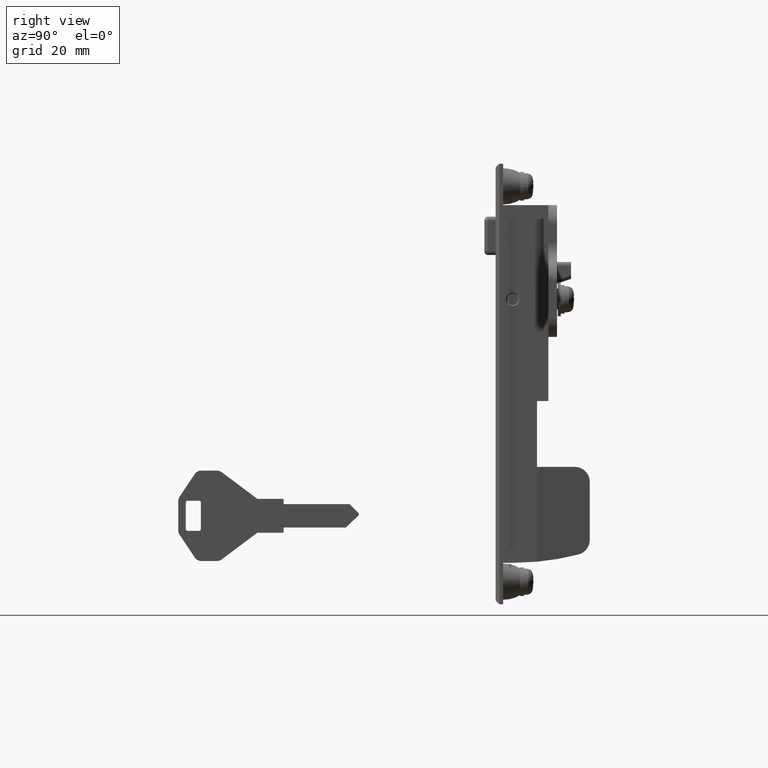
[diagram: clean part render]
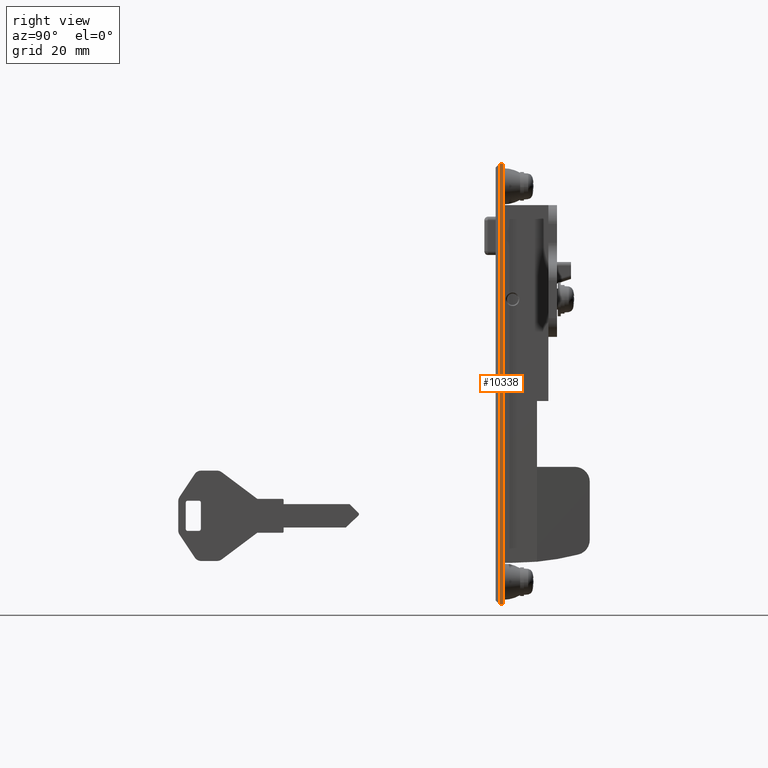
[diagram: same view with one face highlighted and labeled with its STEP entity id]
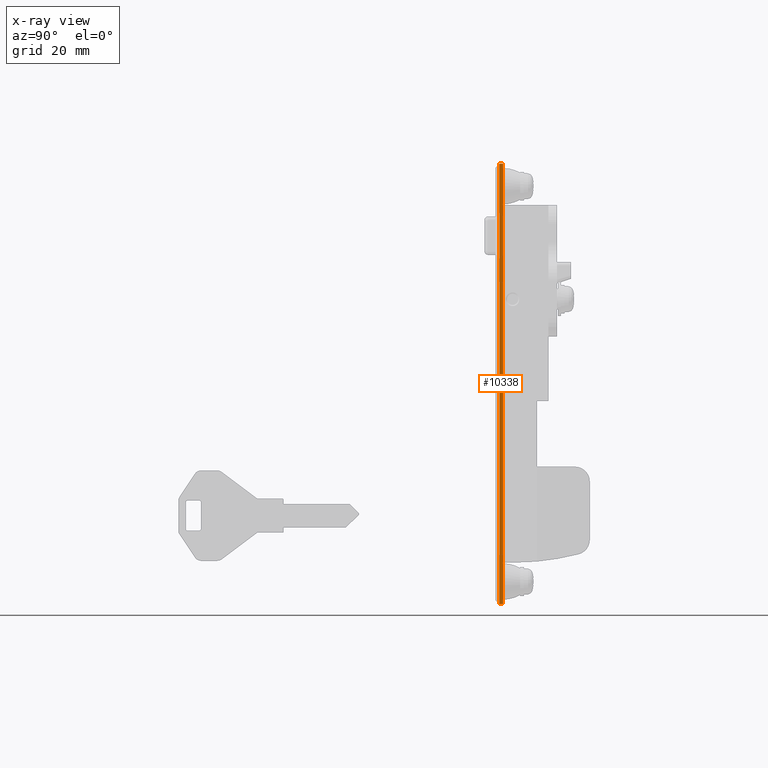
[diagram: x-ray of the same camera — body ghosted, the highlighted face saturated]
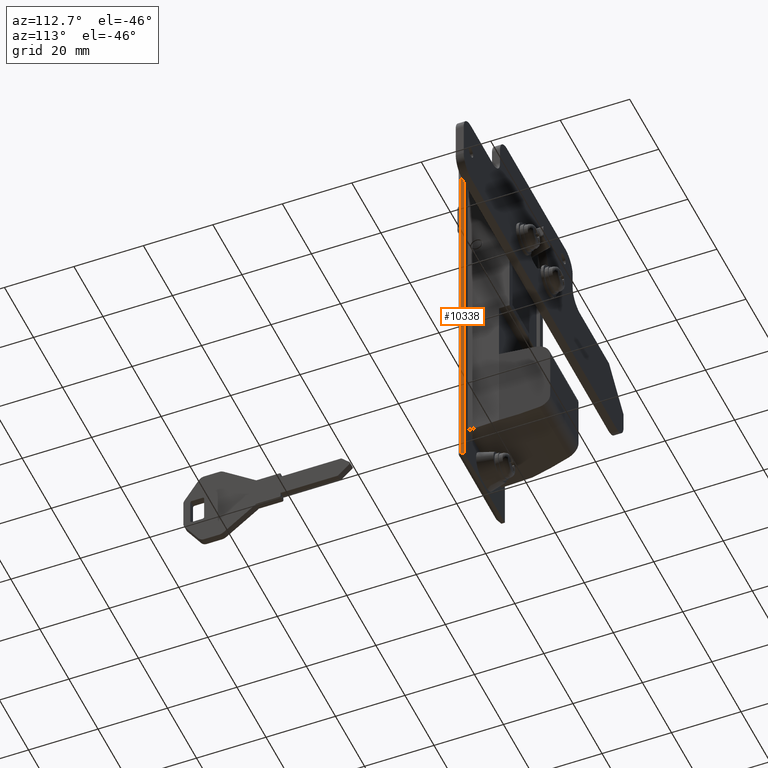
[diagram: same view with one face highlighted and labeled with its STEP entity id]
A machine part, right view. The second image highlights one B-rep face of the part: STEP entity #10338.
The next image is the same camera in x-ray: the body ghosted, the highlighted face saturated — about 0% of this face is hidden behind the body in this view.
A second angle (auxiliary view) of the same face is appended — the face is thin or edge-on in the first view.
In plain terms, the highlighted face is a freeform B-spline surface patch.
Its self-contained STEP definition (entity closure, byte-faithful):
#9916=CARTESIAN_POINT('',(-13.000000000000121,-14.0,-80.999799999999993));
#9917=VERTEX_POINT('',#9916);
#9923=CARTESIAN_POINT('',(-13.0,-14.0,36.0));
#9924=VERTEX_POINT('',#9923);
#9925=CARTESIAN_POINT('',(-13.0,-14.0,36.0));
#9926=CARTESIAN_POINT('',(-13.000000000000121,-14.0,-80.999799999999993));
#9927=QUASI_UNIFORM_CURVE('',1,(#9925,#9926),.UNSPECIFIED.,.F.,.U.);
#9928=EDGE_CURVE('',#9924,#9917,#9927,.T.);
#10311=CARTESIAN_POINT('',(-13.049949998061930,-14.0,41.844139783231682));
#10312=CARTESIAN_POINT('',(-13.049949998061930,-14.0,-86.843942921410871));
#10313=CARTESIAN_POINT('',(-11.950049975116100,-14.0,41.844139783231682));
#10314=CARTESIAN_POINT('',(-11.950049975116100,-14.0,-86.843942921410871));
#10315=B_SPLINE_SURFACE_WITH_KNOTS('',1,1,((#10311,#10313),(#10312,#10314)),.UNSPECIFIED.,.F.,.F.,.U.,(2,2),(2,2),(0.0,128.688082704642600),(0.041708334948495,0.958291687403247),.UNSPECIFIED.);
#10316=CARTESIAN_POINT('',(-12.0,-14.0,36.0));
#10317=VERTEX_POINT('',#10316);
#10318=CARTESIAN_POINT('',(-12.0,-14.0,36.0));
#10319=CARTESIAN_POINT('',(-13.0,-14.0,36.0));
#10320=QUASI_UNIFORM_CURVE('',1,(#10318,#10319),.UNSPECIFIED.,.F.,.U.);
#10321=EDGE_CURVE('',#10317,#9924,#10320,.T.);
#10322=ORIENTED_EDGE('',*,*,#10321,.T.);
#10323=ORIENTED_EDGE('',*,*,#9928,.T.);
#10324=CARTESIAN_POINT('',(-12.0,-14.0,-80.999799999999993));
#10325=VERTEX_POINT('',#10324);
#10326=CARTESIAN_POINT('',(-12.0,-14.0,-80.999799999999993));
#10327=CARTESIAN_POINT('',(-13.000000000000121,-14.0,-80.999799999999993));
#10328=QUASI_UNIFORM_CURVE('',1,(#10326,#10327),.UNSPECIFIED.,.F.,.U.);
#10329=EDGE_CURVE('',#10325,#9917,#10328,.T.);
#10330=ORIENTED_EDGE('',*,*,#10329,.F.);
#10331=CARTESIAN_POINT('',(-12.0,-14.0,-80.999799999999993));
#10332=CARTESIAN_POINT('',(-12.0,-14.0,36.0));
#10333=QUASI_UNIFORM_CURVE('',1,(#10331,#10332),.UNSPECIFIED.,.F.,.U.);
#10334=EDGE_CURVE('',#10325,#10317,#10333,.T.);
#10335=ORIENTED_EDGE('',*,*,#10334,.T.);
#10336=EDGE_LOOP('',(#10322,#10323,#10330,#10335));
#10337=FACE_OUTER_BOUND('',#10336,.T.);
#10338=ADVANCED_FACE('',(#10337),#10315,.T.);